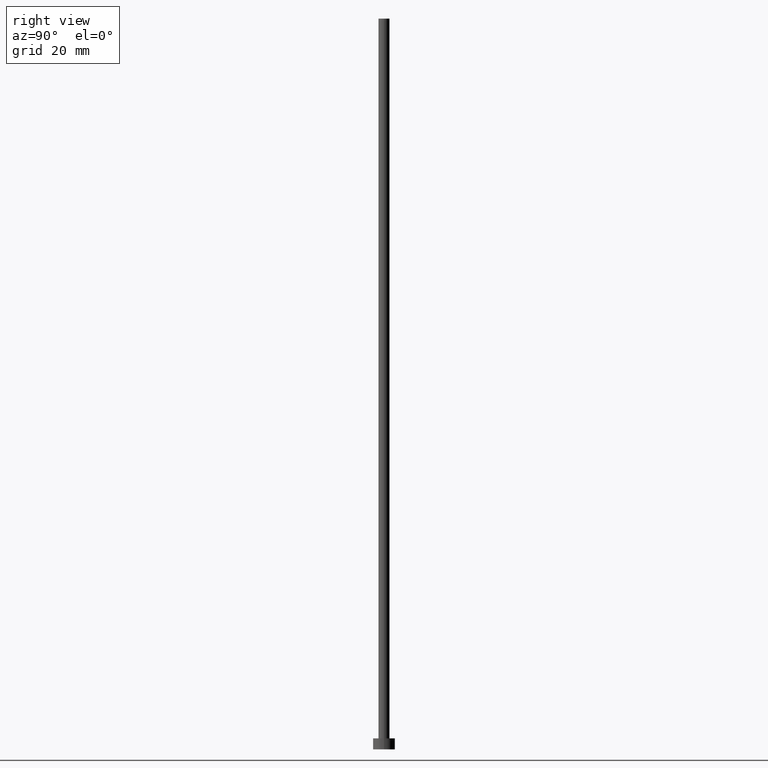
[diagram: clean part render]
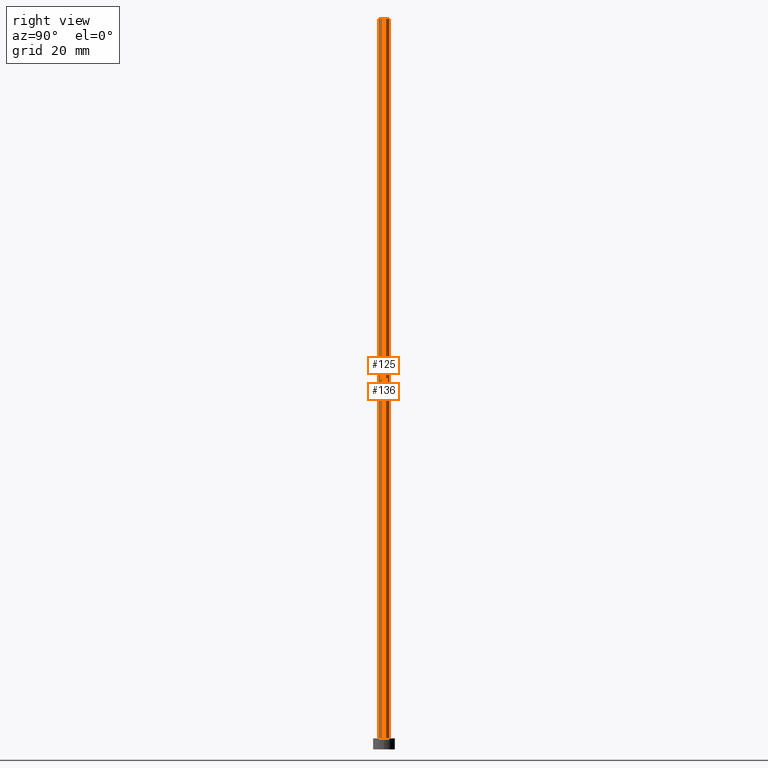
[diagram: same view with one multi-face feature highlighted, each face labeled with its STEP entity id]
A machine part, right view. The highlighted faces form ONE feature: a constant-radius fillet chain: 2 tangent blend faces with common blend radius 1.5 mm. The faces share edges in the B-rep.
Their STEP definitions:
[1] entity #136 (Cylinder):
#4 = VERTEX_POINT ( 'NONE', #238 ) ;
#7 = CIRCLE ( 'NONE', #194, 1.500000000000000222 ) ;
#14 = EDGE_CURVE ( 'NONE', #4, #83, #61, .T. ) ;
#23 = ORIENTED_EDGE ( 'NONE', *, *, #94, .F. ) ;
#26 = DIRECTION ( 'NONE',  ( 1.000000000000000000, 0.000000000000000000, 0.000000000000000000 ) ) ;
#35 = DIRECTION ( 'NONE',  ( 1.000000000000000000, 0.000000000000000000, 0.000000000000000000 ) ) ;
#38 = CARTESIAN_POINT ( 'NONE',  ( -1.500000000000000222, 0.000000000000000000, 3.000000000000000000 ) ) ;
#43 = AXIS2_PLACEMENT_3D ( 'NONE', #184, #88, #128 ) ;
#45 = ORIENTED_EDGE ( 'NONE', *, *, #14, .T. ) ;
#57 = ORIENTED_EDGE ( 'NONE', *, *, #76, .T. ) ;
#59 = VECTOR ( 'NONE', #248, 1000.000000000000000 ) ;
#60 = DIRECTION ( 'NONE',  ( -0.000000000000000000, -0.000000000000000000, -1.000000000000000000 ) ) ;
#61 = LINE ( 'NONE', #127, #154 ) ;
#72 = FACE_OUTER_BOUND ( 'NONE', #104, .T. ) ;
#76 = EDGE_CURVE ( 'NONE', #83, #219, #191, .T. ) ;
#83 = VERTEX_POINT ( 'NONE', #147 ) ;
#88 = DIRECTION ( 'NONE',  ( -0.000000000000000000, -0.000000000000000000, -1.000000000000000000 ) ) ;
#92 = EDGE_CURVE ( 'NONE', #4, #160, #7, .T. ) ;
#94 = EDGE_CURVE ( 'NONE', #160, #219, #245, .T. ) ;
#104 = EDGE_LOOP ( 'NONE', ( #222, #45, #57, #23 ) ) ;
#116 = AXIS2_PLACEMENT_3D ( 'NONE', #176, #199, #26 ) ;
#127 = CARTESIAN_POINT ( 'NONE',  ( 1.500000000000000222, 1.836970198721030181E-16, 200.0000000000000000 ) ) ;
#128 = DIRECTION ( 'NONE',  ( -1.000000000000000000, 0.000000000000000000, 0.000000000000000000 ) ) ;
#133 = CYLINDRICAL_SURFACE ( 'NONE', #43, 1.500000000000000222 ) ;
#136 = ADVANCED_FACE ( 'NONE', ( #72 ), #133, .T. ) ;
#147 = CARTESIAN_POINT ( 'NONE',  ( 1.500000000000000222, 1.836970198721030181E-16, 3.000000000000000000 ) ) ;
#154 = VECTOR ( 'NONE', #60, 1000.000000000000000 ) ;
#160 = VERTEX_POINT ( 'NONE', #226 ) ;
#170 = CARTESIAN_POINT ( 'NONE',  ( -1.500000000000000222, 0.000000000000000000, 200.0000000000000000 ) ) ;
#176 = CARTESIAN_POINT ( 'NONE',  ( 0.000000000000000000, 0.000000000000000000, 3.000000000000000000 ) ) ;
#184 = CARTESIAN_POINT ( 'NONE',  ( 0.000000000000000000, 0.000000000000000000, 200.0000000000000000 ) ) ;
#188 = DIRECTION ( 'NONE',  ( 0.000000000000000000, 0.000000000000000000, 1.000000000000000000 ) ) ;
#191 = CIRCLE ( 'NONE', #116, 1.500000000000000222 ) ;
#194 = AXIS2_PLACEMENT_3D ( 'NONE', #206, #188, #35 ) ;
#199 = DIRECTION ( 'NONE',  ( 0.000000000000000000, 0.000000000000000000, 1.000000000000000000 ) ) ;
#206 = CARTESIAN_POINT ( 'NONE',  ( 0.000000000000000000, 0.000000000000000000, 200.0000000000000000 ) ) ;
#219 = VERTEX_POINT ( 'NONE', #38 ) ;
#222 = ORIENTED_EDGE ( 'NONE', *, *, #92, .F. ) ;
#226 = CARTESIAN_POINT ( 'NONE',  ( -1.500000000000000222, 0.000000000000000000, 200.0000000000000000 ) ) ;
#238 = CARTESIAN_POINT ( 'NONE',  ( 1.500000000000000222, 1.836970198721030181E-16, 200.0000000000000000 ) ) ;
#245 = LINE ( 'NONE', #170, #59 ) ;
#248 = DIRECTION ( 'NONE',  ( -0.000000000000000000, -0.000000000000000000, -1.000000000000000000 ) ) ;
[2] entity #125 (Cylinder):
#4 = VERTEX_POINT ( 'NONE', #238 ) ;
#10 = CARTESIAN_POINT ( 'NONE',  ( 0.000000000000000000, 0.000000000000000000, 200.0000000000000000 ) ) ;
#12 = CYLINDRICAL_SURFACE ( 'NONE', #25, 1.500000000000000222 ) ;
#14 = EDGE_CURVE ( 'NONE', #4, #83, #61, .T. ) ;
#25 = AXIS2_PLACEMENT_3D ( 'NONE', #10, #90, #54 ) ;
#33 = FACE_OUTER_BOUND ( 'NONE', #253, .T. ) ;
#38 = CARTESIAN_POINT ( 'NONE',  ( -1.500000000000000222, 0.000000000000000000, 3.000000000000000000 ) ) ;
#44 = ORIENTED_EDGE ( 'NONE', *, *, #14, .F. ) ;
#48 = DIRECTION ( 'NONE',  ( 0.000000000000000000, 0.000000000000000000, 1.000000000000000000 ) ) ;
#54 = DIRECTION ( 'NONE',  ( -1.000000000000000000, 0.000000000000000000, 0.000000000000000000 ) ) ;
#59 = VECTOR ( 'NONE', #248, 1000.000000000000000 ) ;
#60 = DIRECTION ( 'NONE',  ( -0.000000000000000000, -0.000000000000000000, -1.000000000000000000 ) ) ;
#61 = LINE ( 'NONE', #127, #154 ) ;
#83 = VERTEX_POINT ( 'NONE', #147 ) ;
#90 = DIRECTION ( 'NONE',  ( -0.000000000000000000, -0.000000000000000000, -1.000000000000000000 ) ) ;
#94 = EDGE_CURVE ( 'NONE', #160, #219, #245, .T. ) ;
#95 = CIRCLE ( 'NONE', #198, 1.500000000000000222 ) ;
#96 = ORIENTED_EDGE ( 'NONE', *, *, #208, .F. ) ;
#110 = CARTESIAN_POINT ( 'NONE',  ( 0.000000000000000000, 0.000000000000000000, 3.000000000000000000 ) ) ;
#123 = DIRECTION ( 'NONE',  ( 1.000000000000000000, 0.000000000000000000, 0.000000000000000000 ) ) ;
#125 = ADVANCED_FACE ( 'NONE', ( #33 ), #12, .T. ) ;
#127 = CARTESIAN_POINT ( 'NONE',  ( 1.500000000000000222, 1.836970198721030181E-16, 200.0000000000000000 ) ) ;
#139 = EDGE_CURVE ( 'NONE', #219, #83, #95, .T. ) ;
#144 = CARTESIAN_POINT ( 'NONE',  ( 0.000000000000000000, 0.000000000000000000, 200.0000000000000000 ) ) ;
#147 = CARTESIAN_POINT ( 'NONE',  ( 1.500000000000000222, 1.836970198721030181E-16, 3.000000000000000000 ) ) ;
#150 = CIRCLE ( 'NONE', #185, 1.500000000000000222 ) ;
#154 = VECTOR ( 'NONE', #60, 1000.000000000000000 ) ;
#160 = VERTEX_POINT ( 'NONE', #226 ) ;
#170 = CARTESIAN_POINT ( 'NONE',  ( -1.500000000000000222, 0.000000000000000000, 200.0000000000000000 ) ) ;
#181 = ORIENTED_EDGE ( 'NONE', *, *, #94, .T. ) ;
#185 = AXIS2_PLACEMENT_3D ( 'NONE', #144, #48, #123 ) ;
#198 = AXIS2_PLACEMENT_3D ( 'NONE', #110, #207, #242 ) ;
#207 = DIRECTION ( 'NONE',  ( 0.000000000000000000, 0.000000000000000000, 1.000000000000000000 ) ) ;
#208 = EDGE_CURVE ( 'NONE', #160, #4, #150, .T. ) ;
#217 = ORIENTED_EDGE ( 'NONE', *, *, #139, .T. ) ;
#219 = VERTEX_POINT ( 'NONE', #38 ) ;
#226 = CARTESIAN_POINT ( 'NONE',  ( -1.500000000000000222, 0.000000000000000000, 200.0000000000000000 ) ) ;
#238 = CARTESIAN_POINT ( 'NONE',  ( 1.500000000000000222, 1.836970198721030181E-16, 200.0000000000000000 ) ) ;
#242 = DIRECTION ( 'NONE',  ( 1.000000000000000000, 0.000000000000000000, 0.000000000000000000 ) ) ;
#245 = LINE ( 'NONE', #170, #59 ) ;
#248 = DIRECTION ( 'NONE',  ( -0.000000000000000000, -0.000000000000000000, -1.000000000000000000 ) ) ;
#253 = EDGE_LOOP ( 'NONE', ( #44, #96, #181, #217 ) ) ;